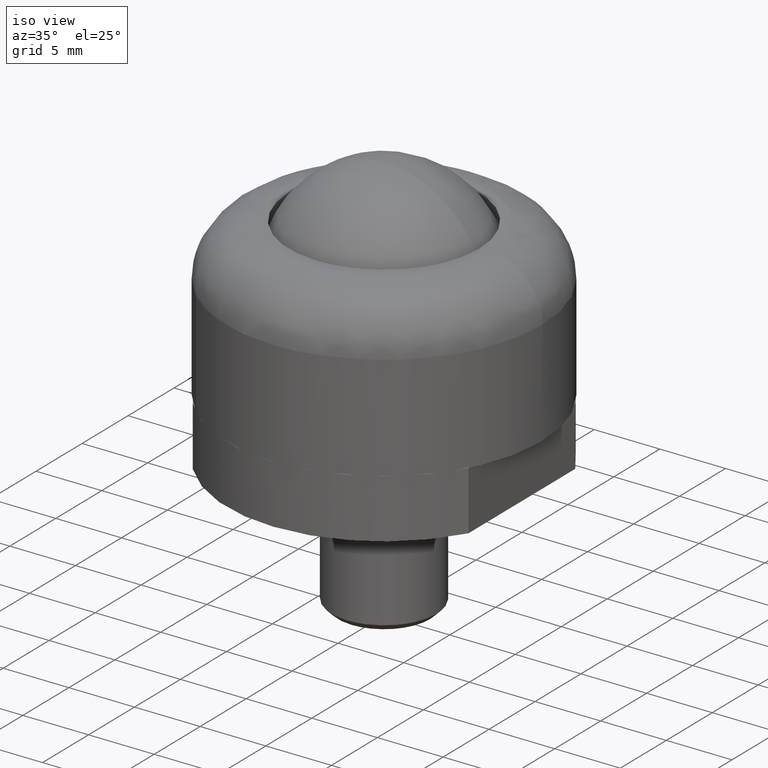
[diagram: clean part render]
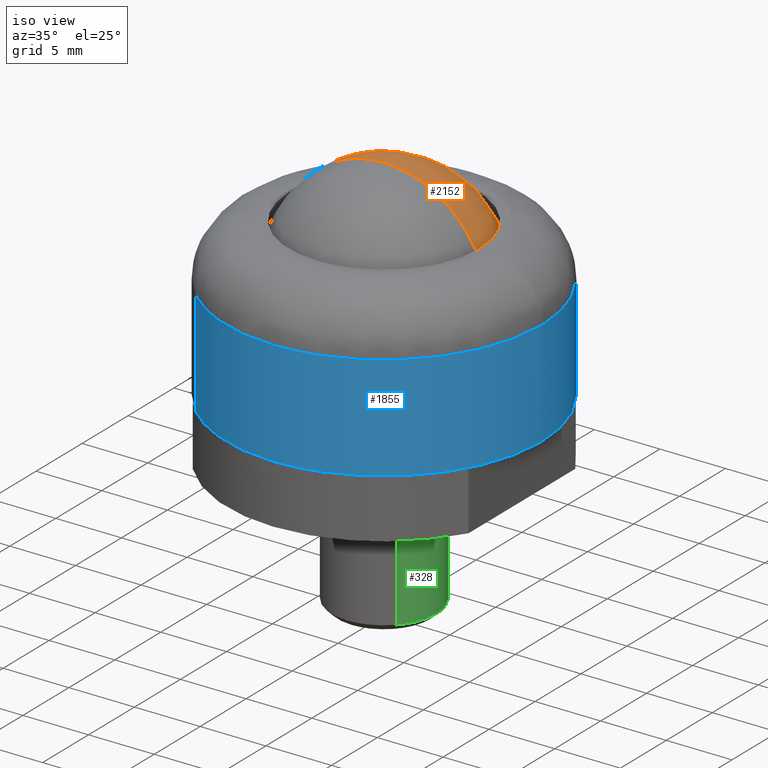
[diagram: same view with three faces highlighted in distinct colors, each labeled with its STEP entity id]
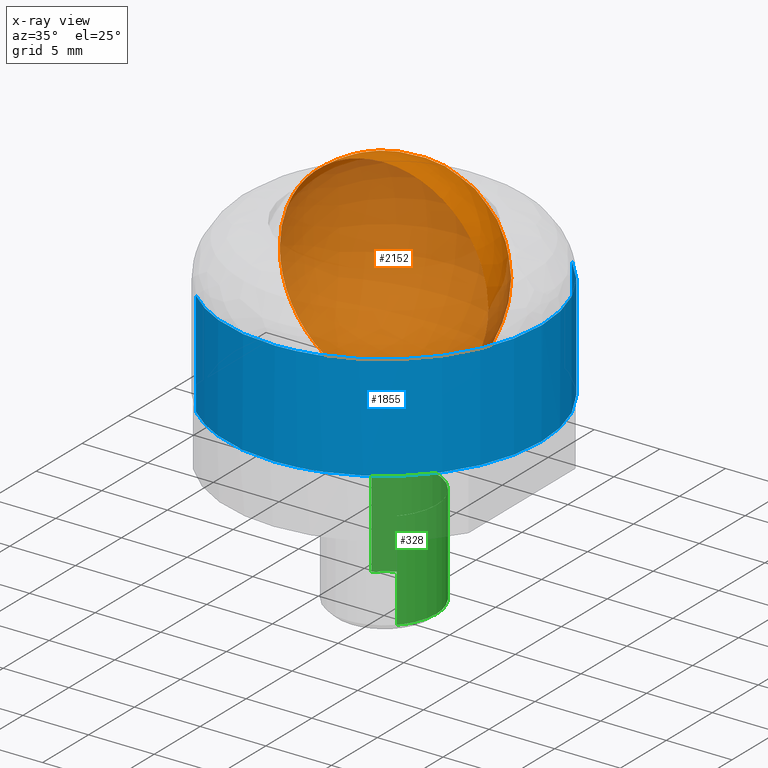
[diagram: x-ray of the same camera — body ghosted, the three highlighted faces saturated]
A machine part, iso view with three faces highlighted in distinct colors.
The next image is the same camera in x-ray (body ghosted, the three faces saturated) — at least one of them is partly hidden behind the body in this view.
Their STEP definitions:

[orange] entity #2152 — the highlighted face is a freeform B-spline surface patch.
#2032=CARTESIAN_POINT('',(-5.203075145219109,-2.976562499999999,13.265575145219108));
#2033=CARTESIAN_POINT('',(-4.712218999443721,-1.946933962264152,14.345458665924964));
#2034=CARTESIAN_POINT('',(-1.982123864845375,-0.377976190476191,15.990995459381505));
#2035=CARTESIAN_POINT('',(1.982123864845375,-0.377976190476191,15.990995459381505));
#2036=CARTESIAN_POINT('',(4.712218999443721,-1.946933962264152,14.345458665924964));
#2037=CARTESIAN_POINT('',(5.203075145219109,-2.976562499999999,13.265575145219108));
#2038=CARTESIAN_POINT('',(-6.282958665924962,-1.946933962264152,12.774718999443722));
#2039=CARTESIAN_POINT('',(-5.946371594536124,-0.377976190476191,14.008871594536123));
#2040=CARTESIAN_POINT('',(-2.685458139467927,2.304435483870967,16.118874418403788));
#2041=CARTESIAN_POINT('',(2.685458139467927,2.304435483870967,16.118874418403788));
#2042=CARTESIAN_POINT('',(5.946371594536124,-0.377976190476191,14.008871594536123));
#2043=CARTESIAN_POINT('',(6.282958665924962,-1.946933962264152,12.774718999443722));
#2044=CARTESIAN_POINT('',(-7.928495459381500,-0.377976190476191,10.044623864845377));
#2045=CARTESIAN_POINT('',(-8.056374418403781,2.304435483870967,10.747958139467928));
#2046=CARTESIAN_POINT('',(-4.162460116175287,7.937499999999997,12.224960116175289));
#2047=CARTESIAN_POINT('',(4.162460116175287,7.937499999999997,12.224960116175289));
#2048=CARTESIAN_POINT('',(8.056374418403781,2.304435483870967,10.747958139467928));
#2049=CARTESIAN_POINT('',(7.928495459381500,-0.377976190476191,10.044623864845377));
#2050=CARTESIAN_POINT('',(-7.928495459381500,-0.377976190476191,6.080376135154623));
#2051=CARTESIAN_POINT('',(-8.056374418403781,2.304435483870967,5.377041860532072));
#2052=CARTESIAN_POINT('',(-4.162460116175287,7.937499999999997,3.900039883824713));
#2053=CARTESIAN_POINT('',(4.162460116175287,7.937499999999997,3.900039883824713));
#2054=CARTESIAN_POINT('',(8.056374418403781,2.304435483870967,5.377041860532072));
#2055=CARTESIAN_POINT('',(7.928495459381500,-0.377976190476191,6.080376135154623));
#2056=CARTESIAN_POINT('',(-6.282958665924962,-1.946933962264152,3.350281000556279));
#2057=CARTESIAN_POINT('',(-5.946371594536124,-0.377976190476191,2.116128405463875));
#2058=CARTESIAN_POINT('',(-2.685458139467927,2.304435483870967,0.006125581596217));
#2059=CARTESIAN_POINT('',(2.685458139467927,2.304435483870967,0.006125581596217));
#2060=CARTESIAN_POINT('',(5.946371594536124,-0.377976190476191,2.116128405463875));
#2061=CARTESIAN_POINT('',(6.282958665924962,-1.946933962264152,3.350281000556279));
#2062=CARTESIAN_POINT('',(-5.203075145219109,-2.976562499999999,2.859424854780890));
#2063=CARTESIAN_POINT('',(-4.712218999443721,-1.946933962264152,1.779541334075038));
#2064=CARTESIAN_POINT('',(-1.982123864845375,-0.377976190476191,0.134004540618498));
#2065=CARTESIAN_POINT('',(1.982123864845375,-0.377976190476191,0.134004540618498));
#2066=CARTESIAN_POINT('',(4.712218999443721,-1.946933962264152,1.779541334075038));
#2067=CARTESIAN_POINT('',(5.203075145219109,-2.976562499999999,2.859424854780890));
#2075=(BOUNDED_SURFACE()B_SPLINE_SURFACE(2,2,((#2032,#2038,#2044,#2050,#2056,#2062),(#2033,#2039,#2045,#2051,#2057,#2063),(#2034,#2040,#2046,#2052,#2058,#2064),(#2035,#2041,#2047,#2053,#2059,#2065),(#2036,#2042,#2048,#2054,#2060,#2066),(#2037,#2043,#2049,#2055,#2061,#2067)),.UNSPECIFIED.,.F.,.F.,.U.)B_SPLINE_SURFACE_WITH_KNOTS((3,1,1,1,3),(3,1,1,1,3),(0.0,7.318611193275233,14.637222386550469,21.955833579825700,29.274444773100932),(0.0,7.318611193275234,14.637222386550469,21.955833579825700,29.274444773100939),.UNSPECIFIED.)GEOMETRIC_REPRESENTATION_ITEM()RATIONAL_B_SPLINE_SURFACE(((3.200000000000000,2.650000000000000,2.100000000000000,2.100000000000000,2.650000000000000,3.200000000000000),(2.650000000000000,2.100000000000000,1.550000000000000,1.550000000000000,2.100000000000000,2.650000000000000),(2.100000000000000,1.550000000000000,1.0,1.0,1.550000000000000,2.100000000000000),(2.100000000000000,1.550000000000000,1.0,1.0,1.550000000000000,2.100000000000000),(2.650000000000000,2.100000000000000,1.550000000000000,1.550000000000000,2.100000000000000,2.650000000000000),(3.200000000000000,2.650000000000000,2.100000000000000,2.100000000000000,2.650000000000000,3.200000000000000)))REPRESENTATION_ITEM('')SURFACE());
#2076=CARTESIAN_POINT('',(7.937499999999995,0.0,8.062499715418666));
#2077=VERTEX_POINT('',#2076);
#2078=CARTESIAN_POINT('',(0.0,0.0,0.125000000000000));
#2079=VERTEX_POINT('',#2078);
#2080=CARTESIAN_POINT('',(7.937499999999995,0.0,8.062499715418666));
#2081=CARTESIAN_POINT('',(7.937526429840752,0.0,7.656636668256201));
#2082=CARTESIAN_POINT('',(7.878839184237136,0.0,6.893620309680375));
#2083=CARTESIAN_POINT('',(7.600812862654347,0.0,5.655249724363086));
#2084=CARTESIAN_POINT('',(7.143167409247266,0.0,4.520978951022039));
#2085=CARTESIAN_POINT('',(6.500862322941942,0.0,3.464210535127037));
#2086=CARTESIAN_POINT('',(5.873411171348401,0.0,2.694860776072514));
#2087=CARTESIAN_POINT('',(5.101020664901105,0.0,1.950374057367405));
#2088=CARTESIAN_POINT('',(4.222373077824977,0.0,1.302878974162642));
#2089=CARTESIAN_POINT('',(3.239781104060269,0.0,0.793102905739649));
#2090=CARTESIAN_POINT('',(2.217663020156920,0.0,0.416728675069624));
#2091=CARTESIAN_POINT('',(1.168887880635739,0.0,0.181217954856186));
#2092=CARTESIAN_POINT('',(0.373391559620912,0.0,0.124986498605539));
#2093=CARTESIAN_POINT('',(0.0,0.0,0.125000000000000));
#2094=B_SPLINE_CURVE_WITH_KNOTS('',3,(#2080,#2081,#2082,#2083,#2084,#2085,#2086,#2087,#2088,#2089,#2090,#2091,#2092,#2093),.UNSPECIFIED.,.F.,.U.,(4,1,1,1,1,1,1,1,1,1,1,4),(0.000000032738585,1.217586002176585,2.289084432942797,3.798911578408381,4.870408895761898,5.990590187463901,6.769833340091660,8.084854152672790,9.253753082750126,10.081726149205799,11.348038189644511,12.468215242520900),.UNSPECIFIED.);
#2095=EDGE_CURVE('',#2077,#2079,#2094,.T.);
#2096=ORIENTED_EDGE('',*,*,#2095,.T.);
#2097=CARTESIAN_POINT('',(-7.937499999999995,0.0,8.062499715418666));
#2098=VERTEX_POINT('',#2097);
#2099=CARTESIAN_POINT('',(-7.937499999999995,0.0,8.062499715418666));
#2100=CARTESIAN_POINT('',(-7.937526429840752,0.0,7.656636668256201));
#2101=CARTESIAN_POINT('',(-7.878839184237136,0.0,6.893620309680375));
#2102=CARTESIAN_POINT('',(-7.600812862654347,0.0,5.655249724363086));
#2103=CARTESIAN_POINT('',(-7.143167409247266,0.0,4.520978951022039));
#2104=CARTESIAN_POINT('',(-6.500862322941942,0.0,3.464210535127037));
#2105=CARTESIAN_POINT('',(-5.873411171348401,0.0,2.694860776072514));
#2106=CARTESIAN_POINT('',(-5.101020664901105,0.0,1.950374057367405));
#2107=CARTESIAN_POINT('',(-4.222373077824977,0.0,1.302878974162642));
#2108=CARTESIAN_POINT('',(-3.239781104060269,0.0,0.793102905739649));
#2109=CARTESIAN_POINT('',(-2.217663020156920,0.0,0.416728675069624));
#2110=CARTESIAN_POINT('',(-1.168887880635739,0.0,0.181217954856186));
#2111=CARTESIAN_POINT('',(-0.373391559620912,0.0,0.124986498605539));
#2112=CARTESIAN_POINT('',(0.0,0.0,0.125000000000000));
#2113=B_SPLINE_CURVE_WITH_KNOTS('',3,(#2099,#2100,#2101,#2102,#2103,#2104,#2105,#2106,#2107,#2108,#2109,#2110,#2111,#2112),.UNSPECIFIED.,.F.,.U.,(4,1,1,1,1,1,1,1,1,1,1,4),(0.000000032738585,1.217586002176585,2.289084432942797,3.798911578408381,4.870408895761898,5.990590187463901,6.769833340091660,8.084854152672790,9.253753082750126,10.081726149205799,11.348038189644511,12.468215242520900),.UNSPECIFIED.);
#2114=EDGE_CURVE('',#2098,#2079,#2113,.T.);
#2115=ORIENTED_EDGE('',*,*,#2114,.F.);
#2116=CARTESIAN_POINT('',(0.0,0.0,16.0));
#2117=VERTEX_POINT('',#2116);
#2118=CARTESIAN_POINT('',(0.0,0.0,16.0));
#2119=CARTESIAN_POINT('',(-0.681868174005265,0.0,16.000176730155641));
#2120=CARTESIAN_POINT('',(-1.834434392075570,0.0,15.850551650763270));
#2121=CARTESIAN_POINT('',(-3.183390182732144,0.0,15.363114386517770));
#2122=CARTESIAN_POINT('',(-4.174268047028637,0.0,14.837363934207589));
#2123=CARTESIAN_POINT('',(-5.054384347019138,0.0,14.221577290385531));
#2124=CARTESIAN_POINT('',(-5.868254362250860,0.0,13.446698806482241));
#2125=CARTESIAN_POINT('',(-6.604488033672531,0.0,12.515143016114550));
#2126=CARTESIAN_POINT('',(-7.118550296321462,0.0,11.626876080904079));
#2127=CARTESIAN_POINT('',(-7.572640736530427,0.0,10.530629133518520));
#2128=CARTESIAN_POINT('',(-7.864843496030735,0.0,9.393739386047132));
#2129=CARTESIAN_POINT('',(-7.937521676862854,0.0,8.484596402267568));
#2130=CARTESIAN_POINT('',(-7.937499999999995,0.0,8.062499715418666));
#2131=B_SPLINE_CURVE_WITH_KNOTS('',3,(#2118,#2119,#2120,#2121,#2122,#2123,#2124,#2125,#2126,#2127,#2128,#2129,#2130),.UNSPECIFIED.,.F.,.U.,(4,1,1,1,1,1,1,1,1,1,4),(0.000000032712707,2.045561479510239,3.457982931401439,4.285957043250505,5.406142436141937,6.672427645671631,7.646520328403697,8.961527161658276,9.740796197932735,11.201921331977429,12.468215563310901),.UNSPECIFIED.);
#2132=EDGE_CURVE('',#2117,#2098,#2131,.T.);
#2133=ORIENTED_EDGE('',*,*,#2132,.F.);
#2134=CARTESIAN_POINT('',(0.0,0.0,16.0));
#2135=CARTESIAN_POINT('',(0.681868174005265,0.0,16.000176730155641));
#2136=CARTESIAN_POINT('',(1.834434392075570,0.0,15.850551650763270));
#2137=CARTESIAN_POINT('',(3.183390182732144,0.0,15.363114386517770));
#2138=CARTESIAN_POINT('',(4.174268047028637,0.0,14.837363934207589));
#2139=CARTESIAN_POINT('',(5.054384347019138,0.0,14.221577290385531));
#2140=CARTESIAN_POINT('',(5.868254362250860,0.0,13.446698806482241));
#2141=CARTESIAN_POINT('',(6.604488033672531,0.0,12.515143016114550));
#2142=CARTESIAN_POINT('',(7.118550296321462,0.0,11.626876080904079));
#2143=CARTESIAN_POINT('',(7.572640736530427,0.0,10.530629133518520));
#2144=CARTESIAN_POINT('',(7.864843496030735,0.0,9.393739386047132));
#2145=CARTESIAN_POINT('',(7.937521676862854,0.0,8.484596402267568));
#2146=CARTESIAN_POINT('',(7.937499999999995,0.0,8.062499715418666));
#2147=B_SPLINE_CURVE_WITH_KNOTS('',3,(#2134,#2135,#2136,#2137,#2138,#2139,#2140,#2141,#2142,#2143,#2144,#2145,#2146),.UNSPECIFIED.,.F.,.U.,(4,1,1,1,1,1,1,1,1,1,4),(0.000000032712707,2.045561479510239,3.457982931401439,4.285957043250505,5.406142436141937,6.672427645671631,7.646520328403697,8.961527161658276,9.740796197932735,11.201921331977429,12.468215563310901),.UNSPECIFIED.);
#2148=EDGE_CURVE('',#2117,#2077,#2147,.T.);
#2149=ORIENTED_EDGE('',*,*,#2148,.T.);
#2150=EDGE_LOOP('',(#2096,#2115,#2133,#2149));
#2151=FACE_OUTER_BOUND('',#2150,.T.);
#2152=ADVANCED_FACE('',(#2151),#2075,.T.);

[blue] entity #1855 — the highlighted face is a freeform B-spline surface patch.
#1344=CARTESIAN_POINT('',(11.999052530445731,0.150792478605389,8.000000000027146));
#1345=VERTEX_POINT('',#1344);
#1361=CARTESIAN_POINT('',(8.150221700225481,8.807603887390350,8.000000000022855));
#1362=VERTEX_POINT('',#1361);
#1363=CARTESIAN_POINT('',(8.150221700225481,8.807603887390350,8.000000000022855));
#1364=CARTESIAN_POINT('',(8.671482128028611,8.325339009844845,8.000000000023453));
#1365=CARTESIAN_POINT('',(9.474229027210596,7.437816710629212,8.000000000024320));
#1366=CARTESIAN_POINT('',(10.416196169492739,6.019854363783121,8.000000000025432));
#1367=CARTESIAN_POINT('',(11.017441017838140,4.814622836116429,8.000000000026040));
#1368=CARTESIAN_POINT('',(11.485054691502249,3.552992729651795,8.000000000026601));
#1369=CARTESIAN_POINT('',(11.869032063066671,2.051427471956650,8.000000000027027));
#1370=CARTESIAN_POINT('',(11.990193050754140,0.860871659160365,8.000000000027097));
#1371=CARTESIAN_POINT('',(11.999052530445731,0.150792478605389,8.000000000027146));
#1372=B_SPLINE_CURVE_WITH_KNOTS('',3,(#1363,#1364,#1365,#1366,#1367,#1368,#1369,#1370,#1371),.UNSPECIFIED.,.F.,.U.,(4,1,1,1,1,1,4),(7.575803E-009,2.130394669935055,3.576027367319011,5.097726640682389,6.162926198179520,7.608558895563734,9.738953557923326),.UNSPECIFIED.);
#1373=EDGE_CURVE('',#1362,#1345,#1372,.T.);
#1439=CARTESIAN_POINT('',(-8.150221700225480,-8.807603887390352,8.000000000022855));
#1440=VERTEX_POINT('',#1439);
#1452=CARTESIAN_POINT('',(0.075388707493014,-11.999763186945930,8.000000000013573));
#1453=VERTEX_POINT('',#1452);
#1454=CARTESIAN_POINT('',(0.075388707493014,-11.999763186945930,8.000000000013573));
#1455=CARTESIAN_POINT('',(-0.654006143706912,-12.004420671418620,8.000000000014389));
#1456=CARTESIAN_POINT('',(-2.090061988687813,-11.882100078422290,8.000000000016041));
#1457=CARTESIAN_POINT('',(-3.959715974021001,-11.376134511166679,8.000000000018083));
#1458=CARTESIAN_POINT('',(-5.578183753002072,-10.664351549641220,8.000000000019991));
#1459=CARTESIAN_POINT('',(-6.928254911870231,-9.842816120790843,8.000000000021464));
#1460=CARTESIAN_POINT('',(-7.770299474572687,-9.159189611917725,8.000000000022439));
#1461=CARTESIAN_POINT('',(-8.150221700225480,-8.807603887390352,8.000000000022855));
#1462=B_SPLINE_CURVE_WITH_KNOTS('',3,(#1454,#1455,#1456,#1457,#1458,#1459,#1460,#1461),.UNSPECIFIED.,.F.,.U.,(4,1,1,1,1,4),(6.516924E-009,2.188218474336869,4.305852175168417,5.788186343362224,7.482296806935814,9.035224458819268),.UNSPECIFIED.);
#1463=EDGE_CURVE('',#1453,#1440,#1462,.T.);
#1465=CARTESIAN_POINT('',(12.0,0.0,8.0));
#1466=VERTEX_POINT('',#1465);
#1467=CARTESIAN_POINT('',(12.0,0.0,8.0));
#1468=CARTESIAN_POINT('',(12.000011407299761,-0.464460527943945,7.999999999999996));
#1469=CARTESIAN_POINT('',(11.944574154417831,-1.417829200938180,8.000000000000075));
#1470=CARTESIAN_POINT('',(11.646717356755239,-3.081269613846734,8.000000000000437));
#1471=CARTESIAN_POINT('',(11.010339249505590,-4.939191326549644,8.000000000001135));
#1472=CARTESIAN_POINT('',(10.021730813442479,-6.692677011159688,8.000000000002276));
#1473=CARTESIAN_POINT('',(8.984140381373127,-7.996191150020853,8.000000000003505));
#1474=CARTESIAN_POINT('',(7.890624607577387,-9.083254134527977,8.000000000004560));
#1475=CARTESIAN_POINT('',(6.687158894716961,-10.011801255502739,8.000000000006482));
#1476=CARTESIAN_POINT('',(5.409165312356457,-10.737705629668360,8.000000000007132));
#1477=CARTESIAN_POINT('',(4.129871356913888,-11.293162639923990,8.000000000009255));
#1478=CARTESIAN_POINT('',(2.421013081692573,-11.821149636838200,8.000000000010548));
#1479=CARTESIAN_POINT('',(0.979871315033733,-11.994268001263301,8.000000000012932));
#1480=CARTESIAN_POINT('',(0.075388707493014,-11.999763186945930,8.000000000013573));
#1481=B_SPLINE_CURVE_WITH_KNOTS('',3,(#1467,#1468,#1469,#1470,#1471,#1472,#1473,#1474,#1475,#1476,#1477,#1478,#1479,#1480),.UNSPECIFIED.,.F.,.U.,(4,1,1,1,1,1,1,1,1,1,1,4),(0.000000026535375,1.393382668926854,2.860122857525321,5.060234315766738,7.260335007608569,8.873749474419734,10.047110052082751,11.880536035670460,13.420614786120391,14.447330572144489,16.060747338141759,18.774195934235760),.UNSPECIFIED.);
#1482=EDGE_CURVE('',#1466,#1453,#1481,.T.);
#1484=CARTESIAN_POINT('',(11.999052530445731,0.150792478605389,8.000000000027146));
#1485=CARTESIAN_POINT('',(12.0,0.0,8.0));
#1486=QUASI_UNIFORM_CURVE('',1,(#1484,#1485),.UNSPECIFIED.,.F.,.U.);
#1487=EDGE_CURVE('',#1345,#1466,#1486,.T.);
#1727=CARTESIAN_POINT('',(8.150221724179847,8.807603865223889,1.942890E-016));
#1728=VERTEX_POINT('',#1727);
#1729=CARTESIAN_POINT('',(8.150221700225481,8.807603887390350,8.000000000022855));
#1730=CARTESIAN_POINT('',(8.150221724179847,8.807603865223889,1.942890E-016));
#1731=QUASI_UNIFORM_CURVE('',1,(#1729,#1730),.UNSPECIFIED.,.F.,.U.);
#1732=EDGE_CURVE('',#1362,#1728,#1731,.T.);
#1766=CARTESIAN_POINT('',(-8.150221724179847,-8.807603865223891,1.942890E-016));
#1767=VERTEX_POINT('',#1766);
#1779=CARTESIAN_POINT('',(-8.150221700225480,-8.807603887390352,8.000000000022855));
#1780=CARTESIAN_POINT('',(-8.150221724179847,-8.807603865223891,1.942890E-016));
#1781=QUASI_UNIFORM_CURVE('',1,(#1779,#1780),.UNSPECIFIED.,.F.,.U.);
#1782=EDGE_CURVE('',#1440,#1767,#1781,.T.);
#1787=CARTESIAN_POINT('',(8.150221714000264,8.807603874643686,8.200000000027826));
#1788=CARTESIAN_POINT('',(16.957825588643956,0.657382160643422,8.200000000027826));
#1789=CARTESIAN_POINT('',(8.807603874643686,-8.150221714000264,8.200000000027826));
#1790=CARTESIAN_POINT('',(0.657382160643422,-16.957825588643956,8.200000000027826));
#1791=CARTESIAN_POINT('',(-8.150221714000264,-8.807603874643686,8.200000000027826));
#1792=CARTESIAN_POINT('',(8.150221714000264,8.807603874643686,-0.205000000000696));
#1793=CARTESIAN_POINT('',(16.957825588643956,0.657382160643422,-0.205000000000696));
#1794=CARTESIAN_POINT('',(8.807603874643686,-8.150221714000264,-0.205000000000696));
#1795=CARTESIAN_POINT('',(0.657382160643422,-16.957825588643956,-0.205000000000696));
#1796=CARTESIAN_POINT('',(-8.150221714000264,-8.807603874643686,-0.205000000000696));
#1804=(BOUNDED_SURFACE()B_SPLINE_SURFACE(2,1,((#1787,#1792),(#1788,#1793),(#1789,#1794),(#1790,#1795),(#1791,#1796)),.UNSPECIFIED.,.F.,.F.,.U.)B_SPLINE_SURFACE_WITH_KNOTS((3,2,3),(2,2),(0.0,19.882250993908560,39.764501987817113),(0.0,8.405000000028522),.UNSPECIFIED.)GEOMETRIC_REPRESENTATION_ITEM()RATIONAL_B_SPLINE_SURFACE(((1.0,1.0),(0.707106781186548,0.707106781186548),(1.0,1.0),(0.707106781186548,0.707106781186548),(1.0,1.0)))REPRESENTATION_ITEM('')SURFACE());
#1805=ORIENTED_EDGE('',*,*,#1463,.T.);
#1806=ORIENTED_EDGE('',*,*,#1782,.T.);
#1807=CARTESIAN_POINT('',(0.0,-12.0,0.0));
#1808=VERTEX_POINT('',#1807);
#1809=CARTESIAN_POINT('',(0.0,-12.0,0.0));
#1810=CARTESIAN_POINT('',(-0.699986530723798,-12.000048687467100,1.668663E-017));
#1811=CARTESIAN_POINT('',(-2.169956736284453,-11.871060751411260,5.172851E-017));
#1812=CARTESIAN_POINT('',(-3.931507148013010,-11.381205203783070,9.372122E-017));
#1813=CARTESIAN_POINT('',(-5.387223708976368,-10.746255450045441,1.284233E-016));
#1814=CARTESIAN_POINT('',(-6.710650589090807,-10.000230601089280,1.599718E-016));
#1815=CARTESIAN_POINT('',(-7.636498571738492,-9.283078268364074,1.820426E-016));
#1816=CARTESIAN_POINT('',(-8.150221724179847,-8.807603865223891,1.942890E-016));
#1817=B_SPLINE_CURVE_WITH_KNOTS('',3,(#1809,#1810,#1811,#1812,#1813,#1814,#1815,#1816),.UNSPECIFIED.,.F.,.U.,(4,1,1,1,1,4),(6.701729E-009,2.099961025915477,4.409927718938732,5.459893613363427,6.859873945475978,8.959834964689954),.UNSPECIFIED.);
#1818=EDGE_CURVE('',#1808,#1767,#1817,.T.);
#1819=ORIENTED_EDGE('',*,*,#1818,.F.);
#1820=CARTESIAN_POINT('',(12.0,0.0,0.0));
#1821=VERTEX_POINT('',#1820);
#1822=CARTESIAN_POINT('',(12.0,0.0,0.0));
#1823=CARTESIAN_POINT('',(12.000118696536729,-0.809947506403297,0.0));
#1824=CARTESIAN_POINT('',(11.857799878374530,-2.208889735110283,0.0));
#1825=CARTESIAN_POINT('',(11.341157066411901,-4.032095999804342,0.0));
#1826=CARTESIAN_POINT('',(10.604195405997430,-5.722720429505489,0.0));
#1827=CARTESIAN_POINT('',(9.649912053248482,-7.219524891285317,0.0));
#1828=CARTESIAN_POINT('',(8.374692443749082,-8.652723455516114,0.0));
#1829=CARTESIAN_POINT('',(6.961738219772919,-9.841678162026874,0.0));
#1830=CARTESIAN_POINT('',(5.222767592192676,-10.869545214201899,0.0));
#1831=CARTESIAN_POINT('',(3.471888160648204,-11.532585088383231,0.0));
#1832=CARTESIAN_POINT('',(1.718047782751911,-11.915095543464240,0.0));
#1833=CARTESIAN_POINT('',(0.613593313000995,-12.000035211830840,0.0));
#1834=CARTESIAN_POINT('',(0.0,-12.0,0.0));
#1835=B_SPLINE_CURVE_WITH_KNOTS('',3,(#1822,#1823,#1824,#1825,#1826,#1827,#1828,#1829,#1830,#1831,#1832,#1833,#1834),.UNSPECIFIED.,.F.,.U.,(4,1,1,1,1,1,1,1,1,1,4),(0.000000027044333,2.429819822833615,4.196976010864429,5.669606577657952,7.952183941740296,9.498407437983197,11.412822423937021,13.474506509912191,15.536185248831950,17.008805841592839,18.849585491021241),.UNSPECIFIED.);
#1836=EDGE_CURVE('',#1821,#1808,#1835,.T.);
#1837=ORIENTED_EDGE('',*,*,#1836,.F.);
#1838=CARTESIAN_POINT('',(8.150221724179847,8.807603865223889,1.942890E-016));
#1839=CARTESIAN_POINT('',(8.698469125836015,8.300390692385957,1.831003E-016));
#1840=CARTESIAN_POINT('',(9.561602847345801,7.337205661104610,1.618532E-016));
#1841=CARTESIAN_POINT('',(10.592122048466679,5.728828400222984,1.263736E-016));
#1842=CARTESIAN_POINT('',(11.326963833398480,4.104988887561123,9.055293E-017));
#1843=CARTESIAN_POINT('',(11.865205340940900,2.163347439063184,4.772180E-017));
#1844=CARTESIAN_POINT('',(12.000092759836020,0.772643339845406,1.704392E-017));
#1845=CARTESIAN_POINT('',(12.0,0.0,0.0));
#1846=B_SPLINE_CURVE_WITH_KNOTS('',3,(#1838,#1839,#1840,#1841,#1842,#1843,#1844,#1845),.UNSPECIFIED.,.F.,.U.,(4,1,1,1,1,4),(7.551140E-009,2.240645708477408,3.863190169631452,5.717504333196771,7.571841136143569,9.889750742216009),.UNSPECIFIED.);
#1847=EDGE_CURVE('',#1728,#1821,#1846,.T.);
#1848=ORIENTED_EDGE('',*,*,#1847,.F.);
#1849=ORIENTED_EDGE('',*,*,#1732,.F.);
#1850=ORIENTED_EDGE('',*,*,#1373,.T.);
#1851=ORIENTED_EDGE('',*,*,#1487,.T.);
#1852=ORIENTED_EDGE('',*,*,#1482,.T.);
#1853=EDGE_LOOP('',(#1805,#1806,#1819,#1837,#1848,#1849,#1850,#1851,#1852));
#1854=FACE_OUTER_BOUND('',#1853,.T.);
#1855=ADVANCED_FACE('',(#1854),#1804,.T.);

[green] entity #328 — the highlighted face is a freeform B-spline surface patch.
#131=CARTESIAN_POINT('',(2.702360932232388,2.949109458302873,-13.999999949787229));
#132=VERTEX_POINT('',#131);
#138=CARTESIAN_POINT('',(4.0,0.0,-14.0));
#139=VERTEX_POINT('',#138);
#140=CARTESIAN_POINT('',(2.702360932232388,2.949109458302873,-13.999999949787229));
#141=CARTESIAN_POINT('',(2.867912801394973,2.797431581284251,-13.999999952369739));
#142=CARTESIAN_POINT('',(3.161617682324592,2.478836240992448,-13.999999957794310));
#143=CARTESIAN_POINT('',(3.533537253605497,1.914790948996870,-13.999999967397949));
#144=CARTESIAN_POINT('',(3.771012167713685,1.375078848809598,-13.999999976587400));
#145=CARTESIAN_POINT('',(3.952222472188465,0.725380250202502,-13.999999987649240));
#146=CARTESIAN_POINT('',(4.000062840095223,0.293622550261448,-13.999999995000749));
#147=CARTESIAN_POINT('',(4.0,0.0,-14.0));
#148=B_SPLINE_CURVE_WITH_KNOTS('',3,(#140,#141,#142,#143,#144,#145,#146,#147),.UNSPECIFIED.,.F.,.U.,(4,1,1,1,1,4),(9.982383E-009,0.673590760080704,1.295373726180789,2.020775108285477,2.435296563679113,3.316148824474378),.UNSPECIFIED.);
#149=EDGE_CURVE('',#132,#139,#148,.T.);
#151=CARTESIAN_POINT('',(2.901497408814397,-2.753418235807070,-14.0));
#152=VERTEX_POINT('',#151);
#153=CARTESIAN_POINT('',(4.0,0.0,-14.0));
#154=CARTESIAN_POINT('',(4.000033010973305,-0.268891600280768,-14.0));
#155=CARTESIAN_POINT('',(3.950373144978707,-0.759209951770743,-13.999999999999989));
#156=CARTESIAN_POINT('',(3.758668958807854,-1.414212846602739,-14.000000000000011));
#157=CARTESIAN_POINT('',(3.441955997775472,-2.088862866402805,-14.000000000000041));
#158=CARTESIAN_POINT('',(3.130217443786845,-2.512536986541078,-13.999999999999909));
#159=CARTESIAN_POINT('',(2.901497408814397,-2.753418235807070,-14.0));
#160=B_SPLINE_CURVE_WITH_KNOTS('',3,(#153,#154,#155,#156,#157,#158,#159),.UNSPECIFIED.,.F.,.U.,(4,1,1,1,4),(9.817623E-009,0.806674670906784,1.470999374270353,2.040410248675329,3.036890669432861),.UNSPECIFIED.);
#161=EDGE_CURVE('',#139,#152,#160,.T.);
#208=CARTESIAN_POINT('',(-2.901497408814396,2.753418235807069,-14.0));
#209=VERTEX_POINT('',#208);
#220=CARTESIAN_POINT('',(0.000000403236834,3.999999999999980,-14.0));
#221=VERTEX_POINT('',#220);
#222=CARTESIAN_POINT('',(-2.901497408814396,2.753418235807069,-14.0));
#223=CARTESIAN_POINT('',(-2.657164804238196,3.011068715994605,-14.000000000000020));
#224=CARTESIAN_POINT('',(-2.192219841881486,3.385574770596162,-14.000000000000020));
#225=CARTESIAN_POINT('',(-1.476101175929619,3.737250136890732,-14.0));
#226=CARTESIAN_POINT('',(-0.777744573326314,3.946906319804067,-14.0));
#227=CARTESIAN_POINT('',(-0.287438570940692,4.000047574809071,-13.999999999999980));
#228=CARTESIAN_POINT('',(0.000000403236834,3.999999999999980,-14.0));
#229=B_SPLINE_CURVE_WITH_KNOTS('',3,(#222,#223,#224,#225,#226,#227,#228),.UNSPECIFIED.,.F.,.U.,(4,1,1,1,4),(0.000000011243441,1.065206428523085,1.775329960132973,2.384026181410644,3.246334517595862),.UNSPECIFIED.);
#230=EDGE_CURVE('',#209,#221,#229,.T.);
#232=CARTESIAN_POINT('',(0.000000403236834,3.999999999999980,-14.0));
#233=CARTESIAN_POINT('',(0.278167758323633,4.000048865439355,-13.999999994831310));
#234=CARTESIAN_POINT('',(0.695388034853283,3.956286387999899,-13.999999987079010));
#235=CARTESIAN_POINT('',(1.308390526454853,3.792701338421392,-13.999999975688670));
#236=CARTESIAN_POINT('',(1.966955526993359,3.518918909443784,-13.999999963451881));
#237=CARTESIAN_POINT('',(2.440376819173218,3.189324304212764,-13.999999954655220));
#238=CARTESIAN_POINT('',(2.702360932232388,2.949109458302873,-13.999999949787229));
#239=B_SPLINE_CURVE_WITH_KNOTS('',3,(#232,#233,#234,#235,#236,#237,#238),.UNSPECIFIED.,.F.,.U.,(4,1,1,1,4),(0.000000010414363,0.834490467376560,1.251737349873610,1.900782333701657,2.967075987039245),.UNSPECIFIED.);
#240=EDGE_CURVE('',#221,#132,#239,.T.);
#250=CARTESIAN_POINT('',(-2.901497484049150,2.753418302775015,-6.312499999999999));
#251=CARTESIAN_POINT('',(-0.148079181274134,5.654915786824165,-6.312499999999999));
#252=CARTESIAN_POINT('',(2.753418302775015,2.901497484049150,-6.312499999999999));
#253=CARTESIAN_POINT('',(5.654915786824165,0.148079181274134,-6.312499999999999));
#254=CARTESIAN_POINT('',(2.901497484049150,-2.753418302775015,-6.312499999999999));
#255=CARTESIAN_POINT('',(-2.901497484049150,2.753418302775015,-14.192187499999999));
#256=CARTESIAN_POINT('',(-0.148079181274134,5.654915786824165,-14.192187500000008));
#257=CARTESIAN_POINT('',(2.753418302775015,2.901497484049150,-14.192187499999999));
#258=CARTESIAN_POINT('',(5.654915786824165,0.148079181274134,-14.192187500000008));
#259=CARTESIAN_POINT('',(2.901497484049150,-2.753418302775015,-14.192187499999999));
#267=(BOUNDED_SURFACE()B_SPLINE_SURFACE(2,1,((#250,#255),(#251,#256),(#252,#257),(#253,#258),(#254,#259)),.UNSPECIFIED.,.F.,.F.,.U.)B_SPLINE_SURFACE_WITH_KNOTS((3,2,3),(2,2),(0.0,6.627416997969519,13.254833995939039),(0.0,7.879687500000001),.UNSPECIFIED.)GEOMETRIC_REPRESENTATION_ITEM()RATIONAL_B_SPLINE_SURFACE(((1.0,1.0),(0.707106781186548,0.707106781186548),(1.0,1.0),(0.707106781186548,0.707106781186548),(1.0,1.0)))REPRESENTATION_ITEM('')SURFACE());
#268=CARTESIAN_POINT('',(-2.901497408787624,2.753418235835281,-6.500000000000571));
#269=VERTEX_POINT('',#268);
#270=CARTESIAN_POINT('',(0.000000403236834,3.999999999999980,-6.500000000000000));
#271=VERTEX_POINT('',#270);
#272=CARTESIAN_POINT('',(-2.901497408787624,2.753418235835281,-6.500000000000571));
#273=CARTESIAN_POINT('',(-2.726940514552255,2.937410872270670,-6.500000000000545));
#274=CARTESIAN_POINT('',(-2.406693041003537,3.216218892233681,-6.500000000000474));
#275=CARTESIAN_POINT('',(-1.846172370101352,3.566060985520752,-6.500000000000358));
#276=CARTESIAN_POINT('',(-1.315908659581893,3.793883348316661,-6.500000000000259));
#277=CARTESIAN_POINT('',(-0.676304195470553,3.959651874093964,-6.500000000000129));
#278=CARTESIAN_POINT('',(-0.253619973499714,4.000032986094507,-6.500000000000051));
#279=CARTESIAN_POINT('',(0.000000403236834,3.999999999999980,-6.500000000000000));
#280=B_SPLINE_CURVE_WITH_KNOTS('',3,(#272,#273,#274,#275,#276,#277,#278,#279),.UNSPECIFIED.,.F.,.U.,(4,1,1,1,1,4),(0.000000011243490,0.760858928225358,1.268101326100524,1.978233202703393,2.485475600570905,3.246334517556969),.UNSPECIFIED.);
#281=EDGE_CURVE('',#269,#271,#280,.T.);
#282=ORIENTED_EDGE('',*,*,#281,.T.);
#283=CARTESIAN_POINT('',(4.0,0.0,-6.500000000000000));
#284=VERTEX_POINT('',#283);
#285=CARTESIAN_POINT('',(0.000000403236834,3.999999999999980,-6.500000000000000));
#286=CARTESIAN_POINT('',(0.212708797387579,4.000011984970103,-6.499999999999995));
#287=CARTESIAN_POINT('',(0.654490273671162,3.964680221989648,-6.500000000000005));
#288=CARTESIAN_POINT('',(1.371393743686258,3.785159049091369,-6.499999999999998));
#289=CARTESIAN_POINT('',(2.026194216407130,3.475454432056590,-6.500000000000013));
#290=CARTESIAN_POINT('',(2.611246789433310,3.052528963660934,-6.499999999999967));
#291=CARTESIAN_POINT('',(3.087386017471337,2.576424616007238,-6.500000000000005));
#292=CARTESIAN_POINT('',(3.443774411597763,2.063713362663766,-6.500000000000000));
#293=CARTESIAN_POINT('',(3.713054024199434,1.520446712135031,-6.500000000000006));
#294=CARTESIAN_POINT('',(3.933351089206949,0.867174346989980,-6.499999999999996));
#295=CARTESIAN_POINT('',(4.000085123525079,0.327255270009867,-6.500000000000006));
#296=CARTESIAN_POINT('',(4.0,0.0,-6.500000000000000));
#297=B_SPLINE_CURVE_WITH_KNOTS('',3,(#285,#286,#287,#288,#289,#290,#291,#292,#293,#294,#295,#296),.UNSPECIFIED.,.F.,.U.,(4,1,1,1,1,1,1,1,1,4),(0.000000036621924,0.638128353469766,1.325365729514399,2.208947883671235,2.798002264872807,3.485220035432262,4.221535528173199,4.663329996111894,5.301478125457559,6.283224504228948),.UNSPECIFIED.);
#298=EDGE_CURVE('',#271,#284,#297,.T.);
#299=ORIENTED_EDGE('',*,*,#298,.T.);
#300=CARTESIAN_POINT('',(2.901497408787625,-2.753418235835282,-6.500000000000570));
#301=VERTEX_POINT('',#300);
#302=CARTESIAN_POINT('',(4.0,0.0,-6.500000000000000));
#303=CARTESIAN_POINT('',(4.000037080304240,-0.268892410037022,-6.500000000000058));
#304=CARTESIAN_POINT('',(3.950368382636870,-0.759208825914726,-6.500000000000154));
#305=CARTESIAN_POINT('',(3.758670482752525,-1.414213176564007,-6.500000000000298));
#306=CARTESIAN_POINT('',(3.441955385042240,-2.088862740631300,-6.500000000000427));
#307=CARTESIAN_POINT('',(3.130217636587454,-2.512537021330153,-6.500000000000532));
#308=CARTESIAN_POINT('',(2.901497408787625,-2.753418235835282,-6.500000000000570));
#309=B_SPLINE_CURVE_WITH_KNOTS('',3,(#302,#303,#304,#305,#306,#307,#308),.UNSPECIFIED.,.F.,.U.,(4,1,1,1,4),(9.817440E-009,0.806674670916975,1.470999374289094,2.040410248701393,3.036890669471756),.UNSPECIFIED.);
#310=EDGE_CURVE('',#284,#301,#309,.T.);
#311=ORIENTED_EDGE('',*,*,#310,.T.);
#312=CARTESIAN_POINT('',(2.901497408787625,-2.753418235835282,-6.500000000000570));
#313=CARTESIAN_POINT('',(2.901497408814397,-2.753418235807070,-14.0));
#314=QUASI_UNIFORM_CURVE('',1,(#312,#313),.UNSPECIFIED.,.F.,.U.);
#315=EDGE_CURVE('',#301,#152,#314,.T.);
#316=ORIENTED_EDGE('',*,*,#315,.T.);
#317=ORIENTED_EDGE('',*,*,#161,.F.);
#318=ORIENTED_EDGE('',*,*,#149,.F.);
#319=ORIENTED_EDGE('',*,*,#240,.F.);
#320=ORIENTED_EDGE('',*,*,#230,.F.);
#321=CARTESIAN_POINT('',(-2.901497408787624,2.753418235835281,-6.500000000000571));
#322=CARTESIAN_POINT('',(-2.901497408814396,2.753418235807069,-14.0));
#323=QUASI_UNIFORM_CURVE('',1,(#321,#322),.UNSPECIFIED.,.F.,.U.);
#324=EDGE_CURVE('',#269,#209,#323,.T.);
#325=ORIENTED_EDGE('',*,*,#324,.F.);
#326=EDGE_LOOP('',(#282,#299,#311,#316,#317,#318,#319,#320,#325));
#327=FACE_OUTER_BOUND('',#326,.T.);
#328=ADVANCED_FACE('',(#327),#267,.T.);